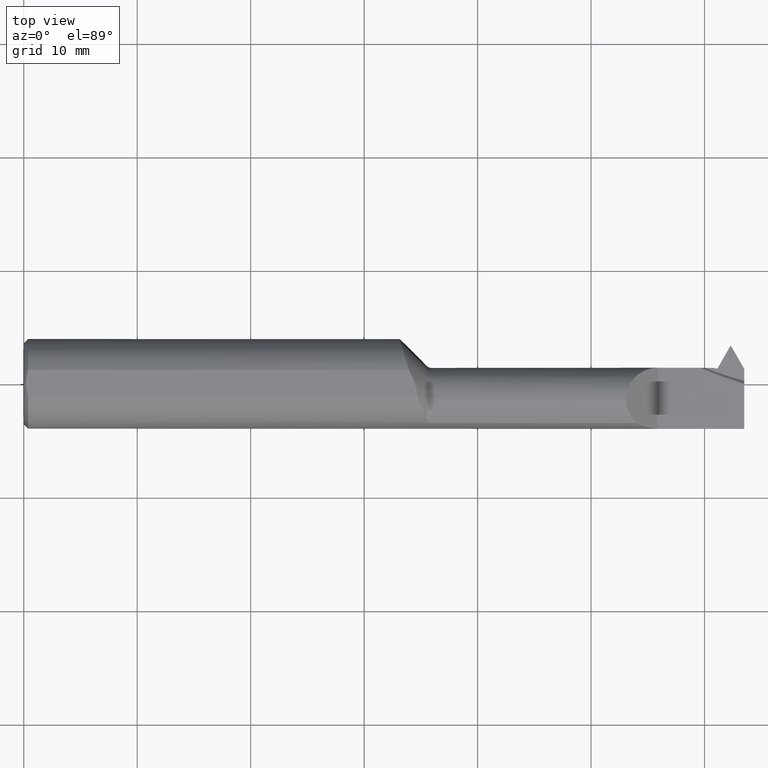
[diagram: clean part render]
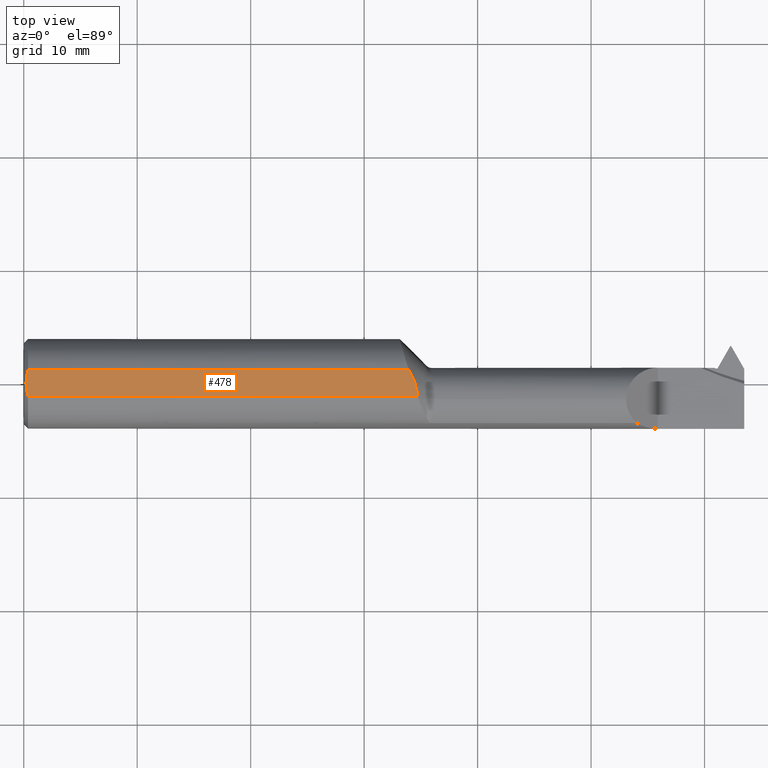
[diagram: same view with one face highlighted and labeled with its STEP entity id]
A machine part, top view. The second image highlights one B-rep face of the part: STEP entity #478.
In plain terms, the highlighted planar face has unit normal (-0, 0, -1).
Its self-contained STEP definition (entity closure, byte-faithful):
#14 = CARTESIAN_POINT ( 'NONE',  ( 0.007999999999999469341, 0.007838945166257094838, 0.1490999999999999548 ) ) ;
#45 = CARTESIAN_POINT ( 'NONE',  ( 0.01499999999999393485, -0.04622120725382292822, 0.1490999999999999270 ) ) ;
#46 = EDGE_CURVE ( 'NONE', #692, #241, #964, .T. ) ;
#58 = CARTESIAN_POINT ( 'NONE',  ( 0.01278044421364358738, -0.03872523995146043979, 0.1490999999999999548 ) ) ;
#68 = VERTEX_POINT ( 'NONE', #142 ) ;
#93 = CARTESIAN_POINT ( 'NONE',  ( 0.007999999999999125866, 4.455076319782333311E-17, 0.1490999999999999270 ) ) ;
#142 = CARTESIAN_POINT ( 'NONE',  ( 1.366635871238674582, -0.04622120725381386602, 0.1490999999999999270 ) ) ;
#161 = ORIENTED_EDGE ( 'NONE', *, *, #405, .F. ) ;
#171 = CARTESIAN_POINT ( 'NONE',  ( 1.350825235768600363, 0.01741984689341649281, 0.1490999999999998993 ) ) ;
#241 = VERTEX_POINT ( 'NONE', #329 ) ;
#249 = CARTESIAN_POINT ( 'NONE',  ( 1.364992327536548533, -0.02989759620680065844, 0.1490999999999999270 ) ) ;
#272 = EDGE_CURVE ( 'NONE', #390, #68, #752, .T. ) ;
#298 = DIRECTION ( 'NONE',  ( -0.000000000000000000, 0.000000000000000000, -1.000000000000000000 ) ) ;
#317 = CARTESIAN_POINT ( 'NONE',  ( 0.007999999999999125866, 4.455076319782333311E-17, 0.1490999999999999270 ) ) ;
#329 = CARTESIAN_POINT ( 'NONE',  ( 0.01499999999999393485, -0.04622120725382292822, 0.1490999999999999270 ) ) ;
#344 = CARTESIAN_POINT ( 'NONE',  ( 0.008634235838431109783, 0.01573208929399682460, 0.1490999999999999270 ) ) ;
#350 = ORIENTED_EDGE ( 'NONE', *, *, #46, .T. ) ;
#364 = CARTESIAN_POINT ( 'NONE',  ( 0.01499999999999970281, 0.04622120725381385214, 0.1490999999999999270 ) ) ;
#372 = PLANE ( 'NONE',  #687 ) ;
#390 = VERTEX_POINT ( 'NONE', #430 ) ;
#393 = CARTESIAN_POINT ( 'NONE',  ( 1.361455283410027306, -0.01367641444778829041, 0.1490999999999999548 ) ) ;
#405 = EDGE_CURVE ( 'NONE', #971, #390, #750, .T. ) ;
#430 = CARTESIAN_POINT ( 'NONE',  ( 1.335731319860130828, 0.04622120725381387296, 0.1490999999999999270 ) ) ;
#439 = FACE_OUTER_BOUND ( 'NONE', #773, .T. ) ;
#458 = CARTESIAN_POINT ( 'NONE',  ( 0.008620033643014864480, -0.01559914152229296101, 0.1490999999999999825 ) ) ;
#477 = CARTESIAN_POINT ( 'NONE',  ( 1.335731319860130828, 0.04622120725381387296, 0.1490999999999999270 ) ) ;
#478 = ADVANCED_FACE ( 'NONE', ( #439 ), #372, .F. ) ;
#482 = ORIENTED_EDGE ( 'NONE', *, *, #272, .F. ) ;
#592 = CARTESIAN_POINT ( 'NONE',  ( 0.01499999999999970281, 0.04622120725381385214, 0.1490999999999999270 ) ) ;
#613 = CARTESIAN_POINT ( 'NONE',  ( 0.01100253626952274640, -0.03102299601567367823, 0.1490999999999999270 ) ) ;
#632 = CARTESIAN_POINT ( 'NONE',  ( 1.343705498961929035, 0.03203370612900885428, 0.1490999999999999270 ) ) ;
#653 = DIRECTION ( 'NONE',  ( -1.000000000000000000, -0.000000000000000000, -0.000000000000000000 ) ) ;
#686 = CARTESIAN_POINT ( 'NONE',  ( 0.007999999999999455463, -0.007830403603065291818, 0.1490999999999999270 ) ) ;
#687 = AXIS2_PLACEMENT_3D ( 'NONE', #938, #298, #760 ) ;
#692 = VERTEX_POINT ( 'NONE', #317 ) ;
#700 = ORIENTED_EDGE ( 'NONE', *, *, #799, .F. ) ;
#709 = CARTESIAN_POINT ( 'NONE',  ( 1.366635871238674582, -0.04622120725381386602, 0.1490999999999999270 ) ) ;
#731 = CARTESIAN_POINT ( 'NONE',  ( 2.500000000000000000, -0.04622120725381385214, 0.1490999999999999270 ) ) ;
#750 = LINE ( 'NONE', #831, #793 ) ;
#752 = B_SPLINE_CURVE_WITH_KNOTS ( 'NONE', 3,
 ( #477, #632, #171, #972, #393, #249, #800, #709 ),
 .UNSPECIFIED., .F., .F.,
 ( 4, 2, 2, 4 ),
 ( 0.004170257919704616414, 0.005419282688077418919, 0.006043795072263820171, 0.006668307456450221424 ),
 .UNSPECIFIED. ) ;
#760 = DIRECTION ( 'NONE',  ( -1.000000000000000000, 0.000000000000000000, 0.000000000000000000 ) ) ;
#773 = EDGE_LOOP ( 'NONE', ( #482, #161, #852, #350, #700 ) ) ;
#793 = VECTOR ( 'NONE', #906, 39.37007874015748143 ) ;
#799 = EDGE_CURVE ( 'NONE', #68, #241, #995, .T. ) ;
#800 = CARTESIAN_POINT ( 'NONE',  ( 1.366149622418283860, -0.03804125154417743043, 0.1490999999999999548 ) ) ;
#827 = CARTESIAN_POINT ( 'NONE',  ( 0.01278288443379417376, 0.03873348115474874176, 0.1490999999999999270 ) ) ;
#831 = CARTESIAN_POINT ( 'NONE',  ( 2.500000000000000000, 0.04622120725381385214, 0.1490999999999999270 ) ) ;
#838 = EDGE_CURVE ( 'NONE', #971, #692, #1009, .T. ) ;
#852 = ORIENTED_EDGE ( 'NONE', *, *, #838, .T. ) ;
#906 = DIRECTION ( 'NONE',  ( 1.000000000000000000, 0.000000000000000000, 0.000000000000000000 ) ) ;
#919 = CARTESIAN_POINT ( 'NONE',  ( 0.01102802999246689508, 0.03114634426099329584, 0.1490999999999999825 ) ) ;
#938 = CARTESIAN_POINT ( 'NONE',  ( 0.000000000000000000, 0.1749999999999999889, 0.1490999999999999270 ) ) ;
#948 = VECTOR ( 'NONE', #653, 39.37007874015748143 ) ;
#964 = B_SPLINE_CURVE_WITH_KNOTS ( 'NONE', 3,
 ( #966, #686, #458, #613, #58, #45 ),
 .UNSPECIFIED., .F., .F.,
 ( 4, 2, 4 ),
 ( 0.004897592659350309685, 0.005485910453056662590, 0.006074228246763015496 ),
 .UNSPECIFIED. ) ;
#966 = CARTESIAN_POINT ( 'NONE',  ( 0.007999999999999125866, 4.455076319782333311E-17, 0.1490999999999999270 ) ) ;
#971 = VERTEX_POINT ( 'NONE', #364 ) ;
#972 = CARTESIAN_POINT ( 'NONE',  ( 1.359095431277676846, -0.005703213165482817065, 0.1490999999999999548 ) ) ;
#995 = LINE ( 'NONE', #731, #948 ) ;
#1009 = B_SPLINE_CURVE_WITH_KNOTS ( 'NONE', 3,
 ( #592, #827, #919, #344, #14, #93 ),
 .UNSPECIFIED., .F., .F.,
 ( 4, 2, 4 ),
 ( 0.003719673573955530402, 0.004308633116652920043, 0.004897592659350309685 ),
 .UNSPECIFIED. ) ;